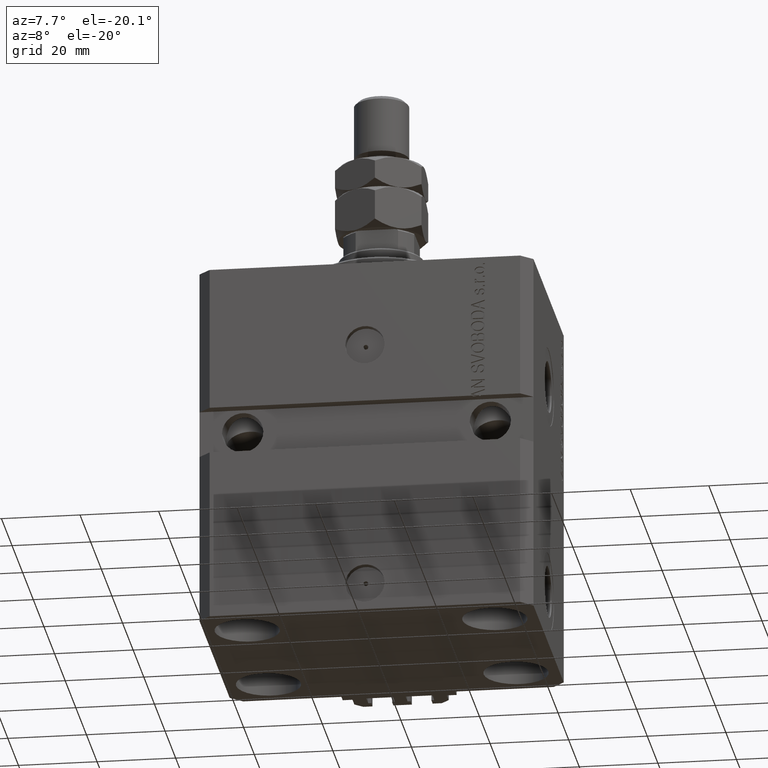
[diagram: clean part render]
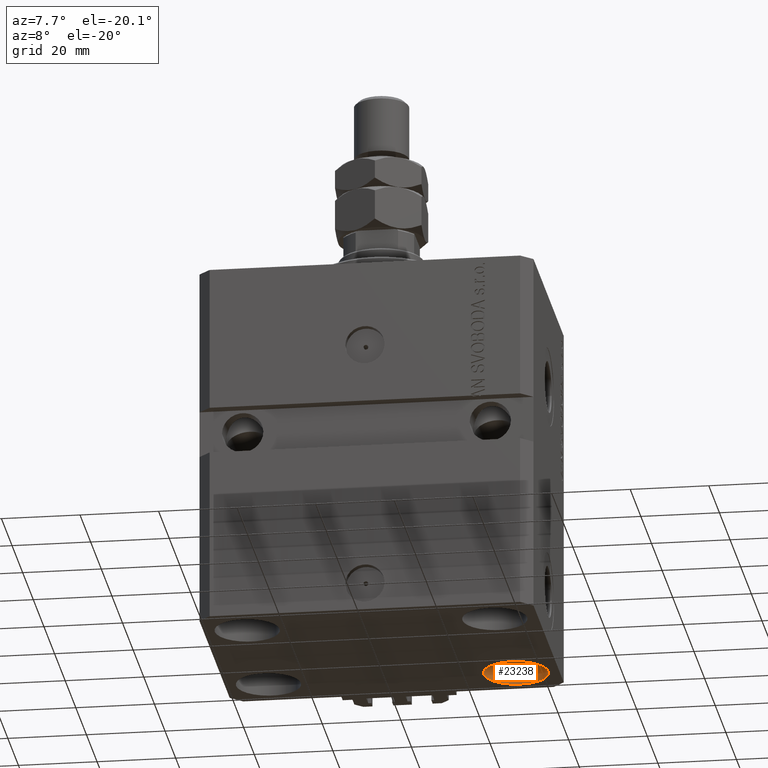
[diagram: same view with one face highlighted and labeled with its STEP entity id]
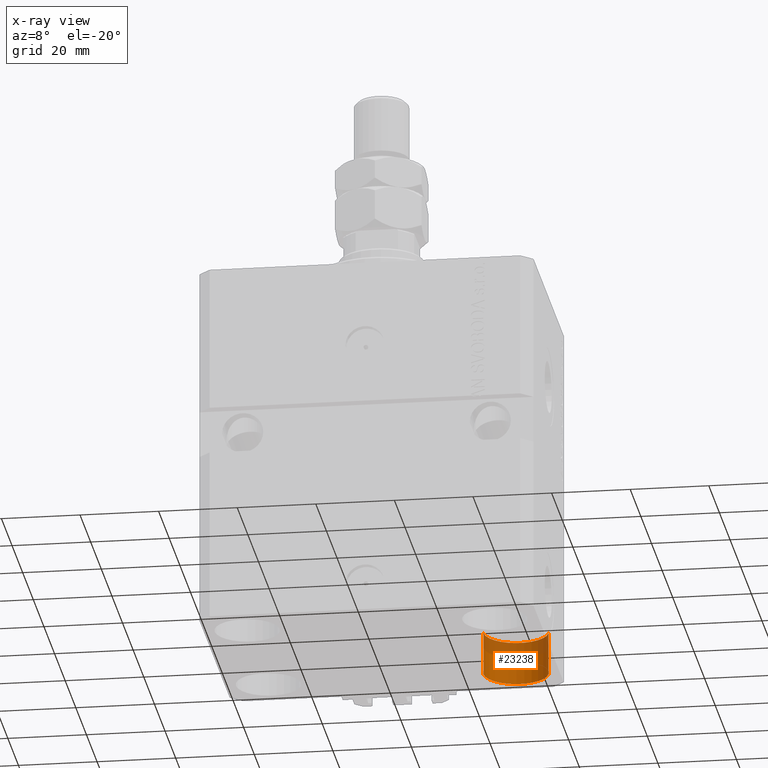
[diagram: x-ray of the same camera — body ghosted, the highlighted face saturated]
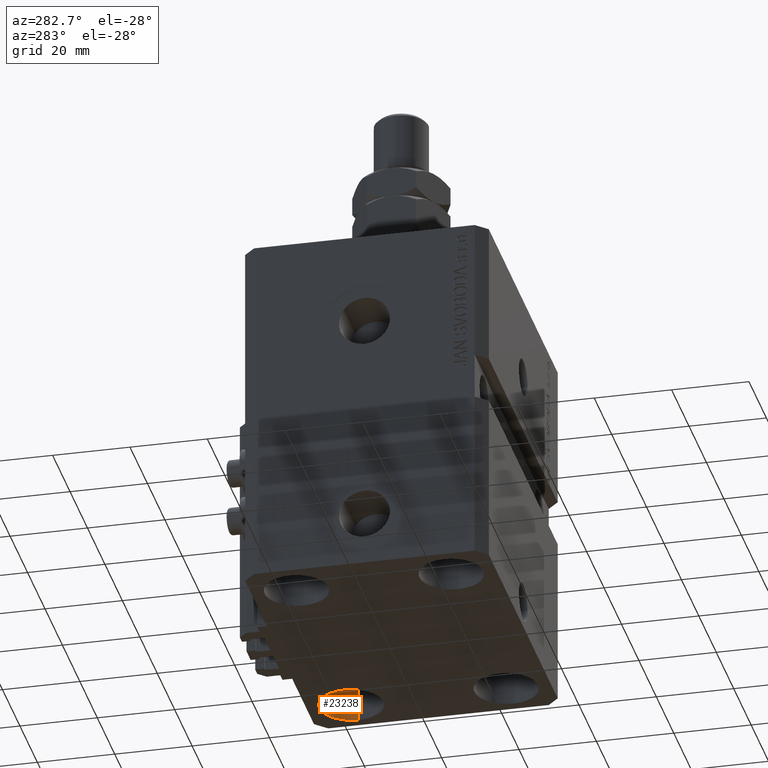
[diagram: same view with one face highlighted and labeled with its STEP entity id]
A machine part, auxiliary view. The second image highlights one B-rep face of the part: STEP entity #23238.
The next image is the same camera in x-ray: the body ghosted, the highlighted face saturated — about 37% of this face is hidden behind the body in this view.
A second angle (auxiliary view) of the same face is appended — the face is thin or edge-on in the first view.
In plain terms, the highlighted cylindrical surface (edge-blend (fillet) strip) has radius 8.25 mm, axis along (-0, -0, -1).
Its self-contained STEP definition (entity closure, byte-faithful):
#1512 = CARTESIAN_POINT ( 'NONE',  ( 31.50000000000000000, 20.00000000000001066, -82.00000000000000000 ) ) ;
#2093 = CIRCLE ( 'NONE', #20564, 8.249999999999992895 ) ;
#3344 = CARTESIAN_POINT ( 'NONE',  ( 23.25000000000000355, 20.00000000000001066, -93.00000000000000000 ) ) ;
#3483 = VERTEX_POINT ( 'NONE', #31502 ) ;
#3687 = VECTOR ( 'NONE', #18201, 1000.000000000000000 ) ;
#5019 = VERTEX_POINT ( 'NONE', #20432 ) ;
#5530 = DIRECTION ( 'NONE',  ( -0.000000000000000000, -0.000000000000000000, -1.000000000000000000 ) ) ;
#7627 = CARTESIAN_POINT ( 'NONE',  ( 23.25000000000000355, 20.00000000000001066, -82.00000000000000000 ) ) ;
#9047 = CYLINDRICAL_SURFACE ( 'NONE', #12181, 8.249999999999996447 ) ;
#12181 = AXIS2_PLACEMENT_3D ( 'NONE', #28145, #5530, #20866 ) ;
#13021 = DIRECTION ( 'NONE',  ( 1.000000000000000000, 0.000000000000000000, 0.000000000000000000 ) ) ;
#15835 = ORIENTED_EDGE ( 'NONE', *, *, #21840, .T. ) ;
#16303 = ORIENTED_EDGE ( 'NONE', *, *, #20293, .F. ) ;
#18201 = DIRECTION ( 'NONE',  ( -0.000000000000000000, -0.000000000000000000, -1.000000000000000000 ) ) ;
#20116 = ORIENTED_EDGE ( 'NONE', *, *, #36023, .F. ) ;
#20293 = EDGE_CURVE ( 'NONE', #3483, #43470, #2093, .T. ) ;
#20432 = CARTESIAN_POINT ( 'NONE',  ( 39.74999999999999289, 20.00000000000001066, -82.00000000000000000 ) ) ;
#20564 = AXIS2_PLACEMENT_3D ( 'NONE', #24829, #36119, #13021 ) ;
#20839 = EDGE_LOOP ( 'NONE', ( #20116, #47206, #15835, #16303 ) ) ;
#20866 = DIRECTION ( 'NONE',  ( -1.000000000000000000, 0.000000000000000000, 0.000000000000000000 ) ) ;
#21840 = EDGE_CURVE ( 'NONE', #45110, #43470, #46085, .T. ) ;
#23198 = EDGE_CURVE ( 'NONE', #5019, #45110, #32983, .T. ) ;
#23238 = ADVANCED_FACE ( 'NONE', ( #43722 ), #9047, .F. ) ;
#23317 = CARTESIAN_POINT ( 'NONE',  ( 23.25000000000000355, 20.00000000000001066, -82.00000000000000000 ) ) ;
#23889 = DIRECTION ( 'NONE',  ( 1.000000000000000000, 0.000000000000000000, 0.000000000000000000 ) ) ;
#24829 = CARTESIAN_POINT ( 'NONE',  ( 31.50000000000000000, 20.00000000000001066, -93.00000000000000000 ) ) ;
#26481 = DIRECTION ( 'NONE',  ( -0.000000000000000000, -0.000000000000000000, -1.000000000000000000 ) ) ;
#27652 = DIRECTION ( 'NONE',  ( -0.000000000000000000, -0.000000000000000000, 1.000000000000000000 ) ) ;
#28145 = CARTESIAN_POINT ( 'NONE',  ( 31.50000000000000000, 20.00000000000001066, -82.00000000000000000 ) ) ;
#31502 = CARTESIAN_POINT ( 'NONE',  ( 39.74999999999999289, 20.00000000000001066, -93.00000000000000000 ) ) ;
#32983 = CIRCLE ( 'NONE', #48254, 8.249999999999992895 ) ;
#33396 = VECTOR ( 'NONE', #26481, 1000.000000000000000 ) ;
#36023 = EDGE_CURVE ( 'NONE', #5019, #3483, #41282, .T. ) ;
#36119 = DIRECTION ( 'NONE',  ( -0.000000000000000000, -0.000000000000000000, 1.000000000000000000 ) ) ;
#37012 = CARTESIAN_POINT ( 'NONE',  ( 39.74999999999999289, 20.00000000000001066, -82.00000000000000000 ) ) ;
#41282 = LINE ( 'NONE', #37012, #3687 ) ;
#43470 = VERTEX_POINT ( 'NONE', #3344 ) ;
#43722 = FACE_OUTER_BOUND ( 'NONE', #20839, .T. ) ;
#45110 = VERTEX_POINT ( 'NONE', #23317 ) ;
#46085 = LINE ( 'NONE', #7627, #33396 ) ;
#47206 = ORIENTED_EDGE ( 'NONE', *, *, #23198, .T. ) ;
#48254 = AXIS2_PLACEMENT_3D ( 'NONE', #1512, #27652, #23889 ) ;